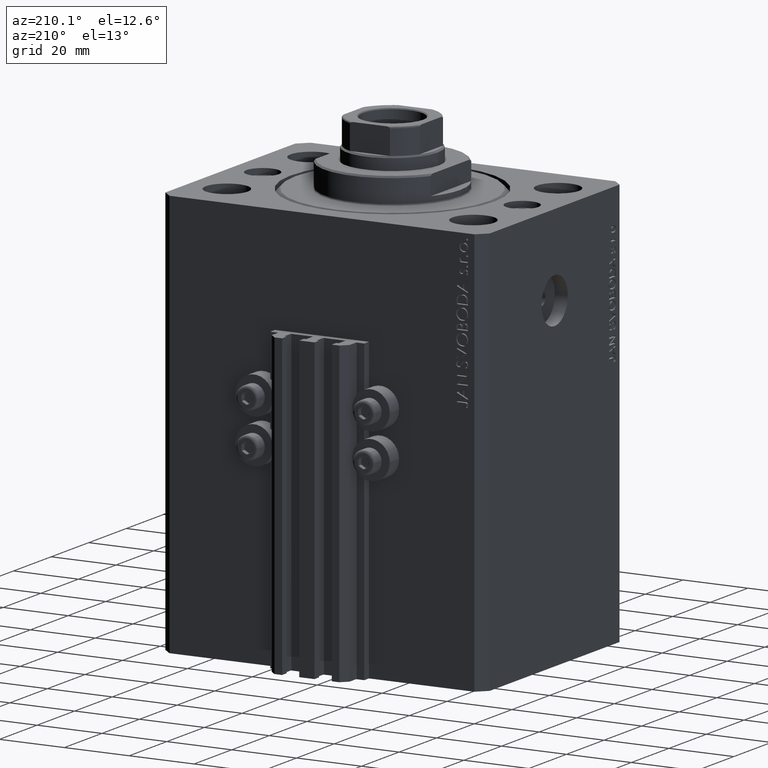
[diagram: clean part render]
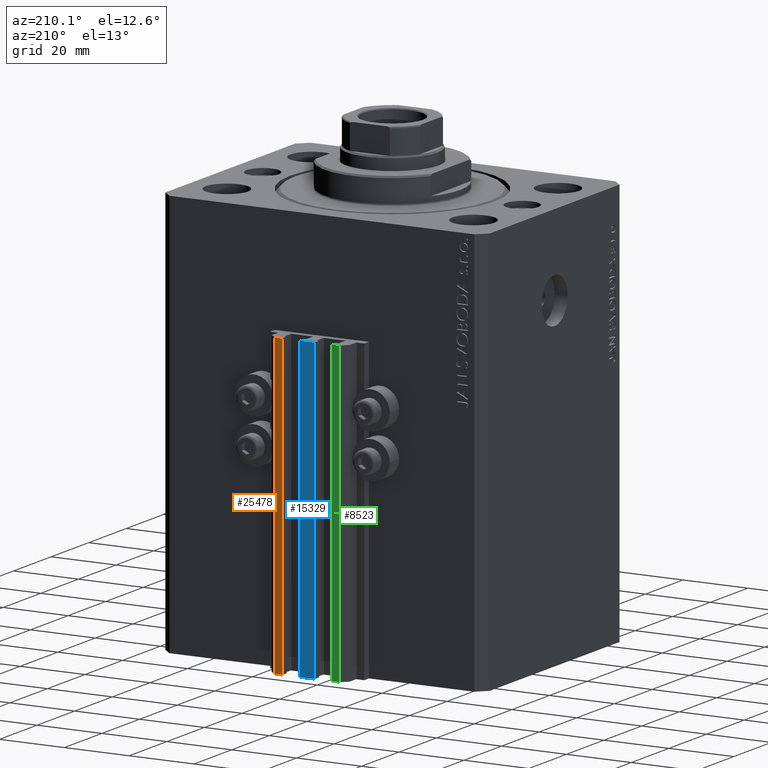
[diagram: same view with three faces highlighted in distinct colors, each labeled with its STEP entity id]
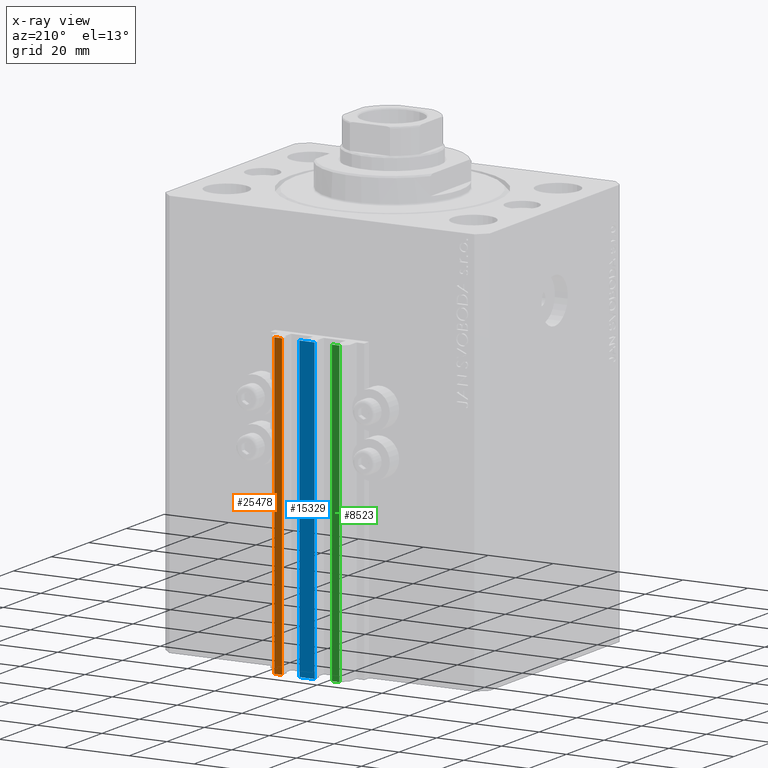
[diagram: x-ray of the same camera — body ghosted, the three highlighted faces saturated]
A machine part, auxiliary view with three faces highlighted in distinct colors.
The next image is the same camera in x-ray (body ghosted, the three faces saturated) — at least one of them is partly hidden behind the body in this view.
Their STEP definitions:

[orange] entity #25478 — the highlighted planar face has unit normal (0, 1, 0).
#1536 = LINE ( 'NONE', #8920, #20120 ) ;
#1739 = CARTESIAN_POINT ( 'NONE',  ( 9.999999999999998224, 45.50000000000002842, -125.0000000000000000 ) ) ;
#3624 = PLANE ( 'NONE',  #41300 ) ;
#4155 = DIRECTION ( 'NONE',  ( 0.000000000000000000, 0.000000000000000000, 1.000000000000000000 ) ) ;
#4376 = DIRECTION ( 'NONE',  ( -1.000000000000000000, 0.000000000000000000, 0.000000000000000000 ) ) ;
#7942 = EDGE_CURVE ( 'NONE', #8820, #37916, #44138, .T. ) ;
#8820 = VERTEX_POINT ( 'NONE', #16774 ) ;
#8920 = CARTESIAN_POINT ( 'NONE',  ( 9.999999999999998224, 45.50000000000002842, -125.0000000000000000 ) ) ;
#13376 = CARTESIAN_POINT ( 'NONE',  ( 7.649999999999998579, 45.50000000000002842, -33.00000000000000000 ) ) ;
#13828 = EDGE_CURVE ( 'NONE', #15097, #37916, #29415, .T. ) ;
#14614 = DIRECTION ( 'NONE',  ( 0.000000000000000000, 0.000000000000000000, 1.000000000000000000 ) ) ;
#15097 = VERTEX_POINT ( 'NONE', #23977 ) ;
#15321 = FACE_OUTER_BOUND ( 'NONE', #36489, .T. ) ;
#16774 = CARTESIAN_POINT ( 'NONE',  ( 7.649999999999998579, 45.50000000000002842, -125.0000000000000000 ) ) ;
#20120 = VECTOR ( 'NONE', #4155, 1000.000000000000000 ) ;
#23977 = CARTESIAN_POINT ( 'NONE',  ( 9.999999999999998224, 45.50000000000002842, -33.00000000000000000 ) ) ;
#25478 = ADVANCED_FACE ( 'NONE', ( #15321 ), #3624, .T. ) ;
#25609 = CARTESIAN_POINT ( 'NONE',  ( 9.999999999999998224, 45.50000000000002842, -33.00000000000000000 ) ) ;
#26318 = CARTESIAN_POINT ( 'NONE',  ( 9.999999999999998224, 45.50000000000002842, -125.0000000000000000 ) ) ;
#29188 = EDGE_CURVE ( 'NONE', #38871, #15097, #1536, .T. ) ;
#29415 = LINE ( 'NONE', #25609, #40147 ) ;
#30687 = ORIENTED_EDGE ( 'NONE', *, *, #13828, .F. ) ;
#31837 = CARTESIAN_POINT ( 'NONE',  ( 9.999999999999998224, 45.50000000000002842, -125.0000000000000000 ) ) ;
#32618 = VECTOR ( 'NONE', #4376, 1000.000000000000000 ) ;
#32696 = CARTESIAN_POINT ( 'NONE',  ( 7.649999999999998579, 45.50000000000002842, -125.0000000000000000 ) ) ;
#33714 = DIRECTION ( 'NONE',  ( 0.000000000000000000, 1.000000000000000000, -0.000000000000000000 ) ) ;
#36489 = EDGE_LOOP ( 'NONE', ( #30687, #42322, #44663, #37147 ) ) ;
#37147 = ORIENTED_EDGE ( 'NONE', *, *, #7942, .T. ) ;
#37558 = EDGE_CURVE ( 'NONE', #38871, #8820, #45204, .T. ) ;
#37916 = VERTEX_POINT ( 'NONE', #13376 ) ;
#38871 = VERTEX_POINT ( 'NONE', #31837 ) ;
#40147 = VECTOR ( 'NONE', #44696, 1000.000000000000000 ) ;
#40321 = DIRECTION ( 'NONE',  ( 0.000000000000000000, 0.000000000000000000, 1.000000000000000000 ) ) ;
#41300 = AXIS2_PLACEMENT_3D ( 'NONE', #26318, #33714, #14614 ) ;
#42322 = ORIENTED_EDGE ( 'NONE', *, *, #29188, .F. ) ;
#43135 = VECTOR ( 'NONE', #40321, 1000.000000000000000 ) ;
#44138 = LINE ( 'NONE', #32696, #43135 ) ;
#44663 = ORIENTED_EDGE ( 'NONE', *, *, #37558, .T. ) ;
#44696 = DIRECTION ( 'NONE',  ( -1.000000000000000000, 0.000000000000000000, 0.000000000000000000 ) ) ;
#45204 = LINE ( 'NONE', #1739, #32618 ) ;

[blue] entity #15329 — the highlighted planar face has unit normal (0, -1, 0).
#3658 = ORIENTED_EDGE ( 'NONE', *, *, #26187, .T. ) ;
#4523 = DIRECTION ( 'NONE',  ( 0.000000000000000000, 0.000000000000000000, 1.000000000000000000 ) ) ;
#4540 = CARTESIAN_POINT ( 'NONE',  ( -2.350000000000003642, 45.50000000000000711, -33.00000000000000000 ) ) ;
#4746 = CARTESIAN_POINT ( 'NONE',  ( -2.350000000000003642, 45.50000000000000711, -125.0000000000000000 ) ) ;
#5102 = VECTOR ( 'NONE', #7433, 1000.000000000000000 ) ;
#6500 = CARTESIAN_POINT ( 'NONE',  ( 2.349999999999999645, 45.50000000000000711, -125.0000000000000000 ) ) ;
#7431 = DIRECTION ( 'NONE',  ( 0.000000000000000000, 0.000000000000000000, 1.000000000000000000 ) ) ;
#7433 = DIRECTION ( 'NONE',  ( 1.000000000000000000, 0.000000000000000000, 0.000000000000000000 ) ) ;
#7784 = VECTOR ( 'NONE', #7431, 1000.000000000000000 ) ;
#7914 = ORIENTED_EDGE ( 'NONE', *, *, #37706, .F. ) ;
#8107 = LINE ( 'NONE', #37265, #42643 ) ;
#8157 = DIRECTION ( 'NONE',  ( 0.000000000000000000, -1.000000000000000000, 0.000000000000000000 ) ) ;
#13132 = ORIENTED_EDGE ( 'NONE', *, *, #46081, .T. ) ;
#14978 = AXIS2_PLACEMENT_3D ( 'NONE', #40891, #8157, #22746 ) ;
#15329 = ADVANCED_FACE ( 'NONE', ( #29905 ), #44465, .F. ) ;
#17660 = VECTOR ( 'NONE', #26053, 1000.000000000000000 ) ;
#21555 = LINE ( 'NONE', #28487, #5102 ) ;
#22746 = DIRECTION ( 'NONE',  ( 0.000000000000000000, -0.000000000000000000, -1.000000000000000000 ) ) ;
#22803 = VERTEX_POINT ( 'NONE', #4540 ) ;
#24369 = CARTESIAN_POINT ( 'NONE',  ( 2.349999999999999645, 45.50000000000000711, -125.0000000000000000 ) ) ;
#24527 = EDGE_CURVE ( 'NONE', #27099, #42470, #39233, .T. ) ;
#26053 = DIRECTION ( 'NONE',  ( 1.000000000000000000, 0.000000000000000000, 0.000000000000000000 ) ) ;
#26187 = EDGE_CURVE ( 'NONE', #22803, #42470, #26294, .T. ) ;
#26285 = EDGE_LOOP ( 'NONE', ( #3658, #31170, #7914, #13132 ) ) ;
#26294 = LINE ( 'NONE', #36338, #17660 ) ;
#26551 = CARTESIAN_POINT ( 'NONE',  ( 2.349999999999999645, 45.50000000000000711, -33.00000000000000000 ) ) ;
#27099 = VERTEX_POINT ( 'NONE', #24369 ) ;
#28487 = CARTESIAN_POINT ( 'NONE',  ( -2.350000000000003642, 45.50000000000000711, -125.0000000000000000 ) ) ;
#29905 = FACE_OUTER_BOUND ( 'NONE', #26285, .T. ) ;
#31170 = ORIENTED_EDGE ( 'NONE', *, *, #24527, .F. ) ;
#36338 = CARTESIAN_POINT ( 'NONE',  ( -2.350000000000003642, 45.50000000000000711, -33.00000000000000000 ) ) ;
#37265 = CARTESIAN_POINT ( 'NONE',  ( -2.350000000000003642, 45.50000000000000711, -125.0000000000000000 ) ) ;
#37706 = EDGE_CURVE ( 'NONE', #45108, #27099, #21555, .T. ) ;
#39233 = LINE ( 'NONE', #6500, #7784 ) ;
#40891 = CARTESIAN_POINT ( 'NONE',  ( -2.350000000000003642, 45.50000000000000711, -125.0000000000000000 ) ) ;
#42470 = VERTEX_POINT ( 'NONE', #26551 ) ;
#42643 = VECTOR ( 'NONE', #4523, 1000.000000000000000 ) ;
#44465 = PLANE ( 'NONE',  #14978 ) ;
#45108 = VERTEX_POINT ( 'NONE', #4746 ) ;
#46081 = EDGE_CURVE ( 'NONE', #45108, #22803, #8107, .T. ) ;

[green] entity #8523 — the highlighted planar face has unit normal (0, 1, 0).
#556 = VECTOR ( 'NONE', #23897, 1000.000000000000000 ) ;
#2022 = DIRECTION ( 'NONE',  ( 0.000000000000000000, 1.000000000000000000, -0.000000000000000000 ) ) ;
#2492 = PLANE ( 'NONE',  #36274 ) ;
#4873 = EDGE_CURVE ( 'NONE', #32894, #33857, #19036, .T. ) ;
#5889 = EDGE_CURVE ( 'NONE', #31459, #16786, #12325, .T. ) ;
#8523 = ADVANCED_FACE ( 'NONE', ( #45245 ), #2492, .T. ) ;
#9417 = CARTESIAN_POINT ( 'NONE',  ( -7.650000000000002132, 45.49999999999999289, -125.0000000000000000 ) ) ;
#9688 = ORIENTED_EDGE ( 'NONE', *, *, #36389, .T. ) ;
#11768 = VECTOR ( 'NONE', #35032, 1000.000000000000000 ) ;
#12325 = LINE ( 'NONE', #45776, #11768 ) ;
#12704 = VECTOR ( 'NONE', #20888, 1000.000000000000000 ) ;
#13051 = ORIENTED_EDGE ( 'NONE', *, *, #5889, .T. ) ;
#16355 = ORIENTED_EDGE ( 'NONE', *, *, #4873, .F. ) ;
#16592 = DIRECTION ( 'NONE',  ( 0.000000000000000000, 0.000000000000000000, 1.000000000000000000 ) ) ;
#16733 = CARTESIAN_POINT ( 'NONE',  ( -7.650000000000002132, 45.49999999999999289, -33.00000000000000000 ) ) ;
#16786 = VERTEX_POINT ( 'NONE', #33971 ) ;
#17204 = LINE ( 'NONE', #16733, #556 ) ;
#19036 = LINE ( 'NONE', #40770, #25504 ) ;
#20888 = DIRECTION ( 'NONE',  ( -1.000000000000000000, 0.000000000000000000, 0.000000000000000000 ) ) ;
#21217 = CARTESIAN_POINT ( 'NONE',  ( -7.650000000000002132, 45.49999999999999289, -33.00000000000000000 ) ) ;
#23897 = DIRECTION ( 'NONE',  ( -1.000000000000000000, 0.000000000000000000, 0.000000000000000000 ) ) ;
#25504 = VECTOR ( 'NONE', #40061, 1000.000000000000000 ) ;
#28193 = CARTESIAN_POINT ( 'NONE',  ( -7.650000000000002132, 45.49999999999999289, -125.0000000000000000 ) ) ;
#28932 = EDGE_LOOP ( 'NONE', ( #37494, #16355, #9688, #13051 ) ) ;
#30634 = CARTESIAN_POINT ( 'NONE',  ( -10.00000000000000000, 45.49999999999999289, -125.0000000000000000 ) ) ;
#31459 = VERTEX_POINT ( 'NONE', #30634 ) ;
#32894 = VERTEX_POINT ( 'NONE', #28193 ) ;
#33857 = VERTEX_POINT ( 'NONE', #21217 ) ;
#33971 = CARTESIAN_POINT ( 'NONE',  ( -10.00000000000000000, 45.49999999999999289, -33.00000000000000000 ) ) ;
#34742 = CARTESIAN_POINT ( 'NONE',  ( -7.650000000000002132, 45.49999999999999289, -125.0000000000000000 ) ) ;
#34749 = LINE ( 'NONE', #9417, #12704 ) ;
#35032 = DIRECTION ( 'NONE',  ( 0.000000000000000000, 0.000000000000000000, 1.000000000000000000 ) ) ;
#36274 = AXIS2_PLACEMENT_3D ( 'NONE', #34742, #2022, #16592 ) ;
#36389 = EDGE_CURVE ( 'NONE', #32894, #31459, #34749, .T. ) ;
#37494 = ORIENTED_EDGE ( 'NONE', *, *, #41430, .F. ) ;
#40061 = DIRECTION ( 'NONE',  ( 0.000000000000000000, 0.000000000000000000, 1.000000000000000000 ) ) ;
#40770 = CARTESIAN_POINT ( 'NONE',  ( -7.650000000000002132, 45.49999999999999289, -125.0000000000000000 ) ) ;
#41430 = EDGE_CURVE ( 'NONE', #33857, #16786, #17204, .T. ) ;
#45245 = FACE_OUTER_BOUND ( 'NONE', #28932, .T. ) ;
#45776 = CARTESIAN_POINT ( 'NONE',  ( -10.00000000000000000, 45.49999999999999289, -125.0000000000000000 ) ) ;